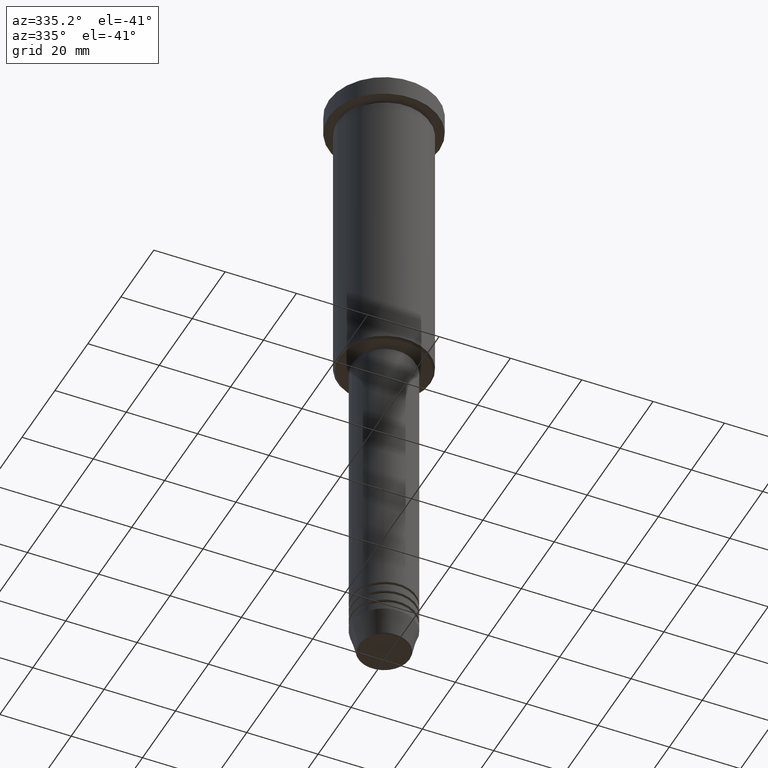
[diagram: clean part render]
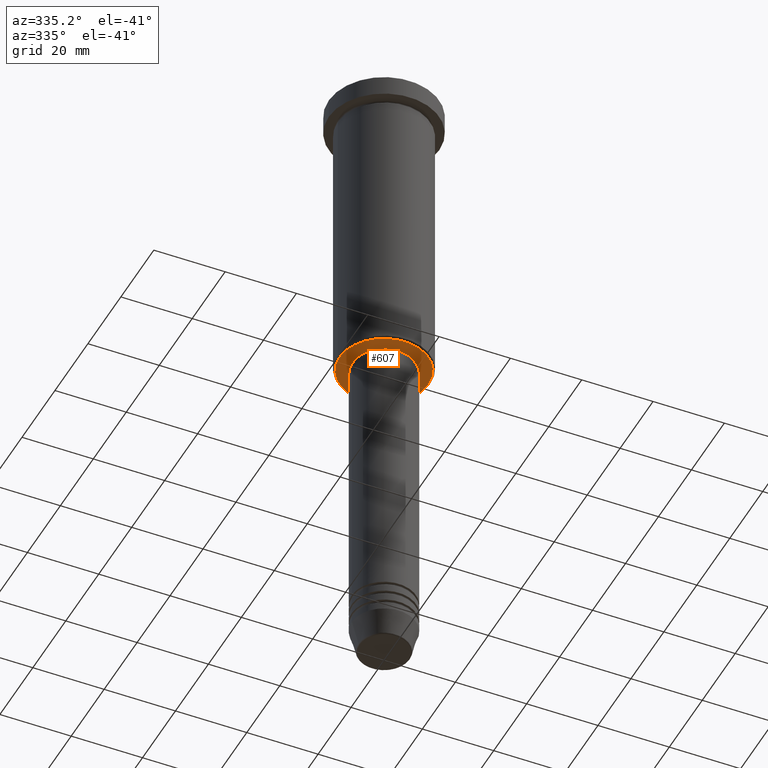
[diagram: same view with one face highlighted and labeled with its STEP entity id]
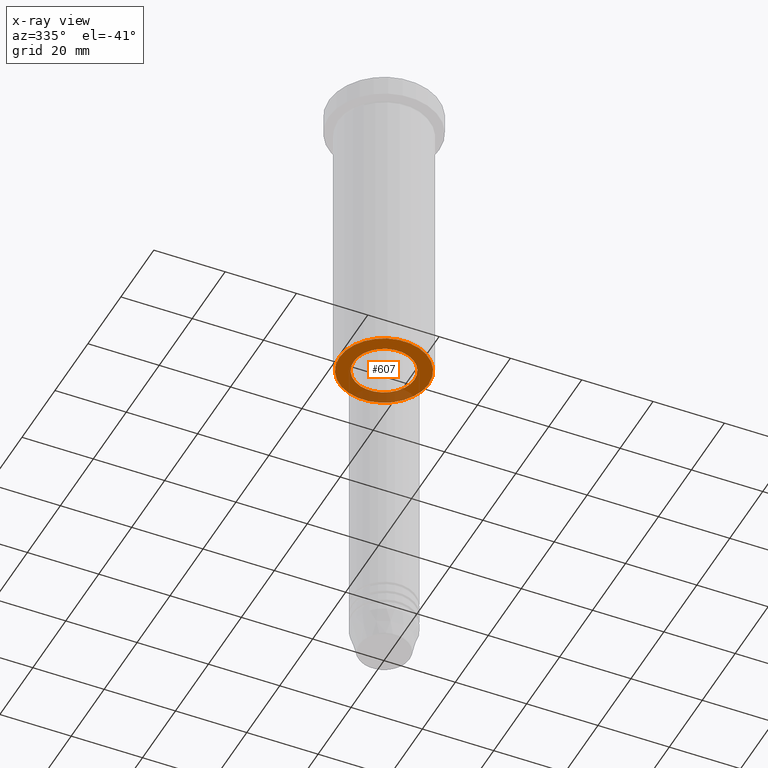
[diagram: x-ray of the same camera — body ghosted, the highlighted face saturated]
A machine part, auxiliary view. The second image highlights one B-rep face of the part: STEP entity #607.
The next image is the same camera in x-ray: the body ghosted, the highlighted face saturated — about 20% of this face is hidden behind the body in this view.
In plain terms, the highlighted planar face has unit normal (0, 0, -1).
Its self-contained STEP definition (entity closure, byte-faithful):
#81 = CIRCLE ( 'NONE', #1032, 8.499999999999998224 ) ;
#86 = CARTESIAN_POINT ( 'NONE',  ( 8.499999999999998224, 0.000000000000000000, -86.00000000000000000 ) ) ;
#99 = CARTESIAN_POINT ( 'NONE',  ( 0.000000000000000000, 0.000000000000000000, -86.00000000000000000 ) ) ;
#108 = ORIENTED_EDGE ( 'NONE', *, *, #185, .T. ) ;
#115 = VERTEX_POINT ( 'NONE', #257 ) ;
#119 = CARTESIAN_POINT ( 'NONE',  ( 0.000000000000000000, 0.000000000000000000, -86.00000000000000000 ) ) ;
#147 = ORIENTED_EDGE ( 'NONE', *, *, #1076, .T. ) ;
#159 = VERTEX_POINT ( 'NONE', #242 ) ;
#164 = VERTEX_POINT ( 'NONE', #169 ) ;
#169 = CARTESIAN_POINT ( 'NONE',  ( -12.50000000000002487, 1.561424668912876886E-15, -86.00000000000000000 ) ) ;
#177 = CARTESIAN_POINT ( 'NONE',  ( 0.000000000000000000, 0.000000000000000000, -86.00000000000000000 ) ) ;
#185 = EDGE_CURVE ( 'NONE', #159, #518, #777, .T. ) ;
#242 = CARTESIAN_POINT ( 'NONE',  ( -8.499999999999998224, 1.040949779275249943E-15, -86.00000000000000000 ) ) ;
#257 = CARTESIAN_POINT ( 'NONE',  ( 12.50000000000002487, 0.000000000000000000, -86.00000000000000000 ) ) ;
#359 = DIRECTION ( 'NONE',  ( 0.000000000000000000, 0.000000000000000000, -1.000000000000000000 ) ) ;
#377 = CARTESIAN_POINT ( 'NONE',  ( 0.000000000000000000, 0.000000000000000000, -86.00000000000000000 ) ) ;
#397 = ORIENTED_EDGE ( 'NONE', *, *, #966, .T. ) ;
#426 = EDGE_LOOP ( 'NONE', ( #397, #799 ) ) ;
#453 = DIRECTION ( 'NONE',  ( -1.000000000000000000, 0.000000000000000000, 0.000000000000000000 ) ) ;
#499 = CIRCLE ( 'NONE', #1177, 12.50000000000002487 ) ;
#518 = VERTEX_POINT ( 'NONE', #86 ) ;
#573 = DIRECTION ( 'NONE',  ( 1.000000000000000000, 0.000000000000000000, 0.000000000000000000 ) ) ;
#584 = DIRECTION ( 'NONE',  ( 0.000000000000000000, 0.000000000000000000, -1.000000000000000000 ) ) ;
#607 = ADVANCED_FACE ( 'NONE', ( #1143, #783 ), #970, .T. ) ;
#616 = DIRECTION ( 'NONE',  ( -0.000000000000000000, -0.000000000000000000, 1.000000000000000000 ) ) ;
#720 = AXIS2_PLACEMENT_3D ( 'NONE', #1056, #584, #879 ) ;
#722 = DIRECTION ( 'NONE',  ( 1.000000000000000000, 0.000000000000000000, 0.000000000000000000 ) ) ;
#754 = DIRECTION ( 'NONE',  ( -0.000000000000000000, -0.000000000000000000, 1.000000000000000000 ) ) ;
#758 = AXIS2_PLACEMENT_3D ( 'NONE', #177, #919, #842 ) ;
#777 = CIRCLE ( 'NONE', #851, 8.499999999999998224 ) ;
#783 = FACE_BOUND ( 'NONE', #1151, .T. ) ;
#799 = ORIENTED_EDGE ( 'NONE', *, *, #958, .T. ) ;
#842 = DIRECTION ( 'NONE',  ( -1.000000000000000000, 0.000000000000000000, 0.000000000000000000 ) ) ;
#851 = AXIS2_PLACEMENT_3D ( 'NONE', #377, #616, #722 ) ;
#870 = CIRCLE ( 'NONE', #758, 12.50000000000002487 ) ;
#879 = DIRECTION ( 'NONE',  ( -1.000000000000000000, 0.000000000000000000, -0.000000000000000000 ) ) ;
#919 = DIRECTION ( 'NONE',  ( 0.000000000000000000, 0.000000000000000000, -1.000000000000000000 ) ) ;
#958 = EDGE_CURVE ( 'NONE', #164, #115, #870, .T. ) ;
#966 = EDGE_CURVE ( 'NONE', #115, #164, #499, .T. ) ;
#970 = PLANE ( 'NONE',  #720 ) ;
#1032 = AXIS2_PLACEMENT_3D ( 'NONE', #119, #754, #573 ) ;
#1056 = CARTESIAN_POINT ( 'NONE',  ( 0.000000000000000000, 13.00000000000000000, -86.00000000000000000 ) ) ;
#1076 = EDGE_CURVE ( 'NONE', #518, #159, #81, .T. ) ;
#1143 = FACE_OUTER_BOUND ( 'NONE', #426, .T. ) ;
#1151 = EDGE_LOOP ( 'NONE', ( #147, #108 ) ) ;
#1177 = AXIS2_PLACEMENT_3D ( 'NONE', #99, #359, #453 ) ;